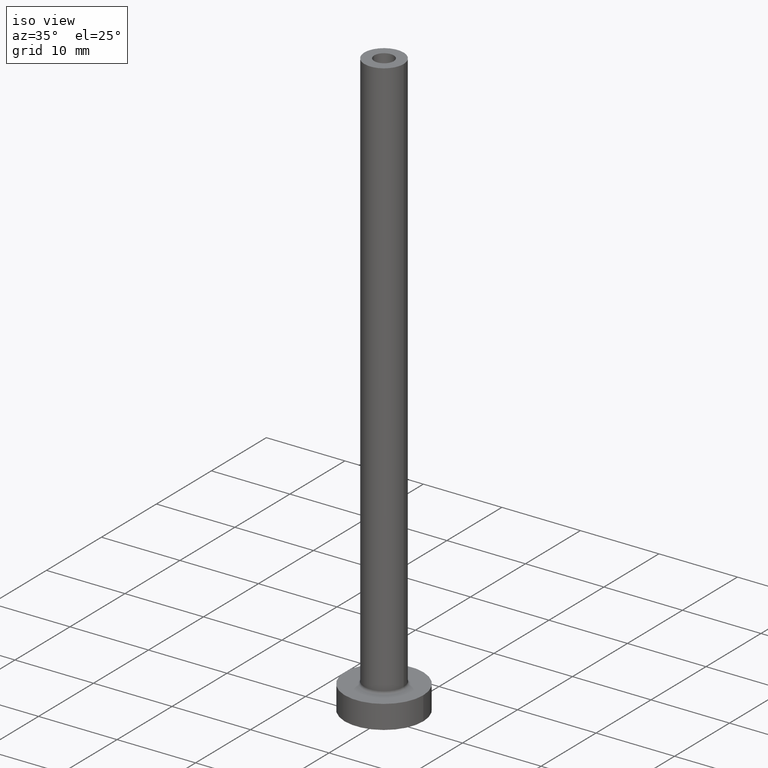
[diagram: clean part render]
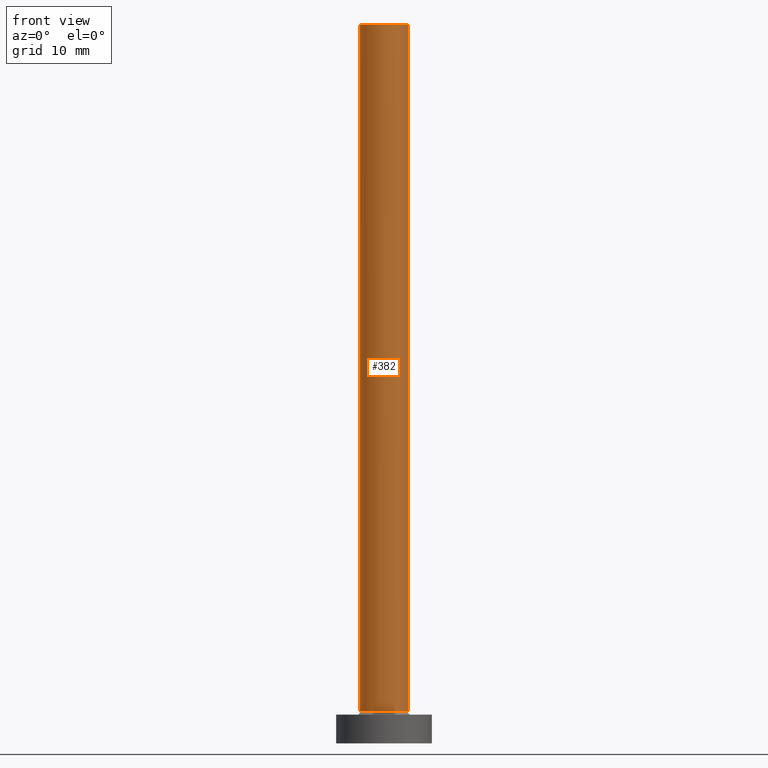
[diagram: tour spotlight — one face highlighted and labeled with its STEP entity id]
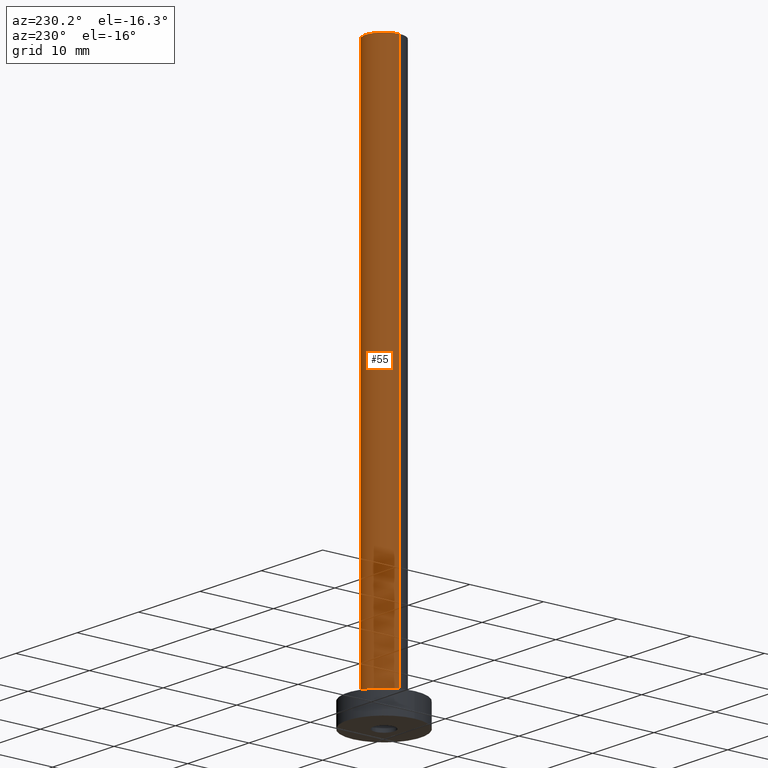
[diagram: tour spotlight — one face highlighted and labeled with its STEP entity id]
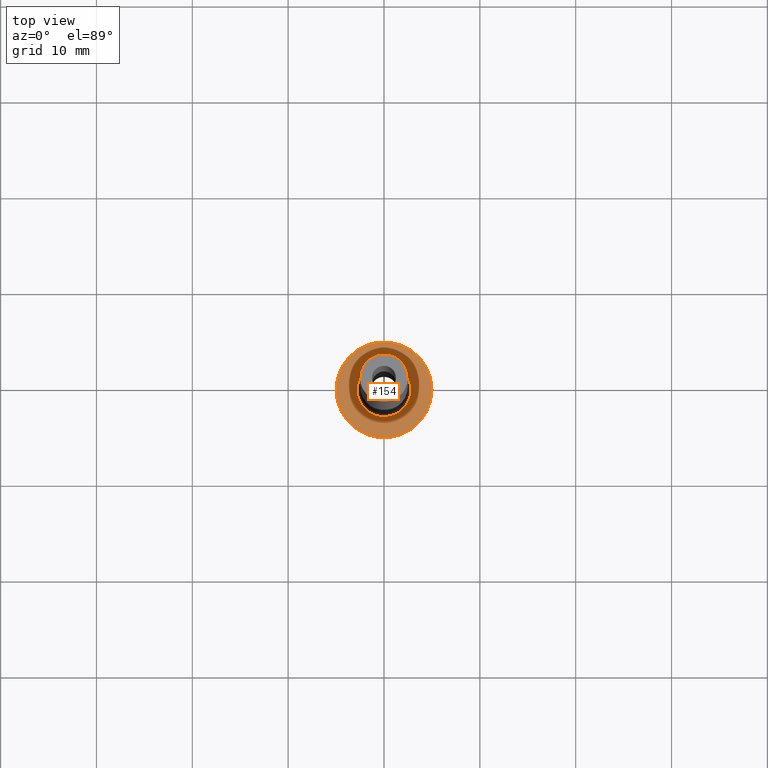
[diagram: tour spotlight — one face highlighted and labeled with its STEP entity id]
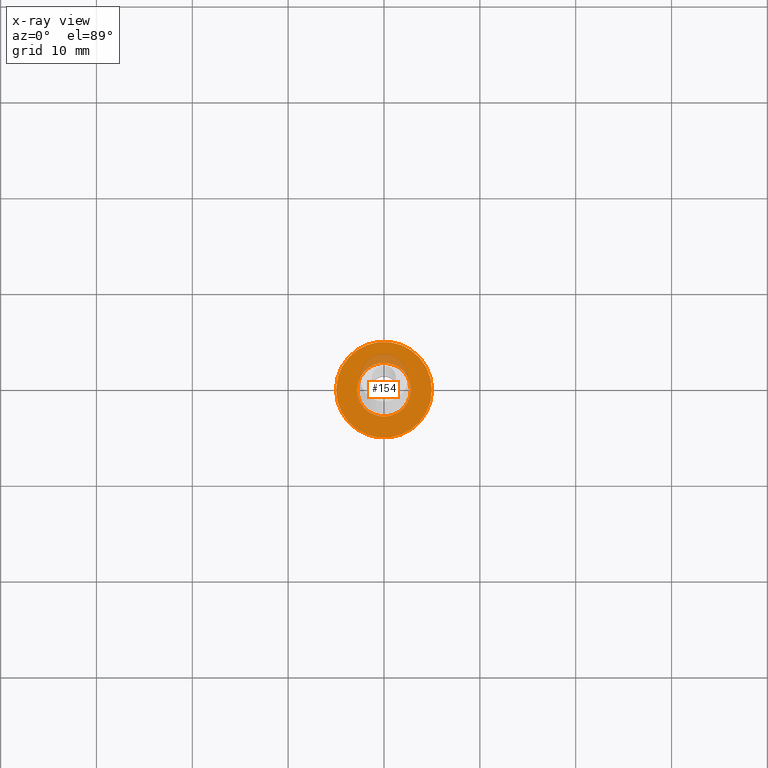
[diagram: x-ray of the same camera — body ghosted, this tour face saturated]
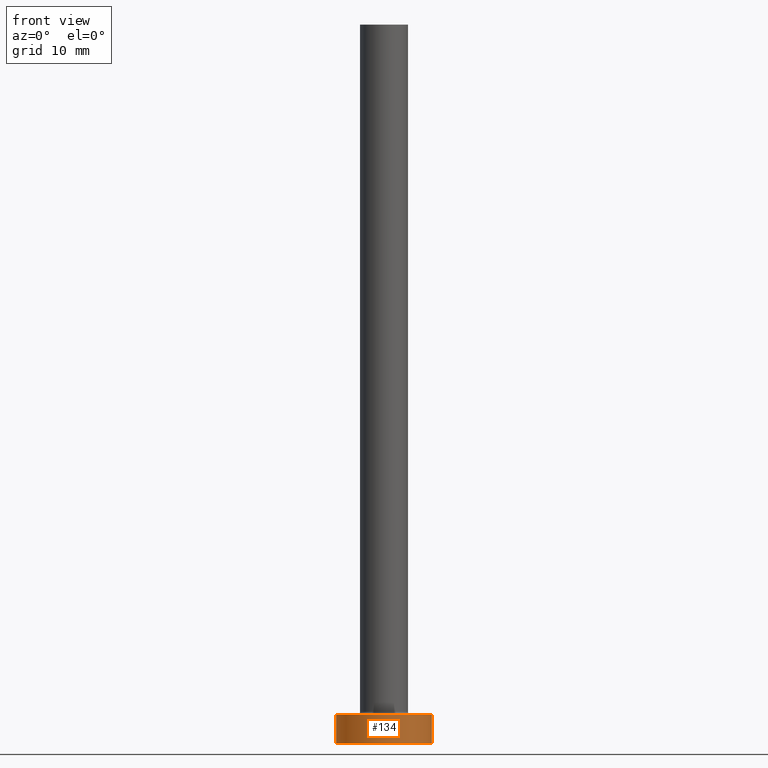
[diagram: tour spotlight — one face highlighted and labeled with its STEP entity id]
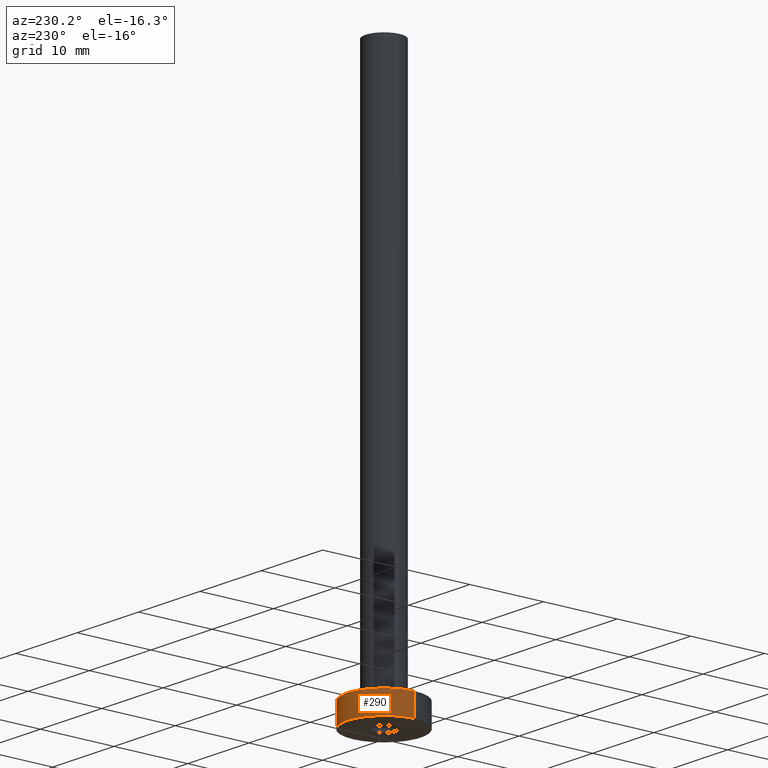
[diagram: tour spotlight — one face highlighted and labeled with its STEP entity id]
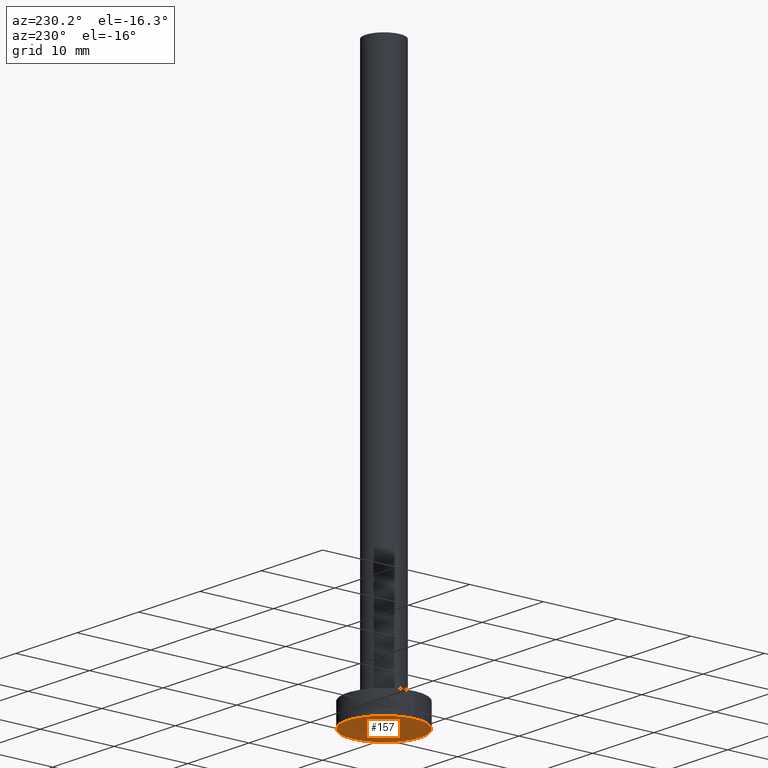
[diagram: tour spotlight — one face highlighted and labeled with its STEP entity id]
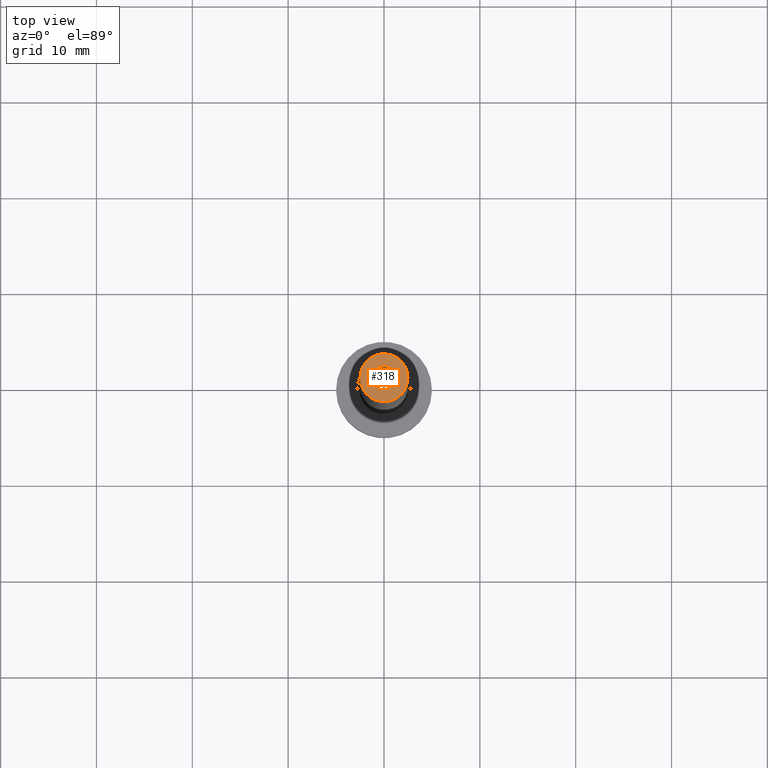
[diagram: tour spotlight — one face highlighted and labeled with its STEP entity id]
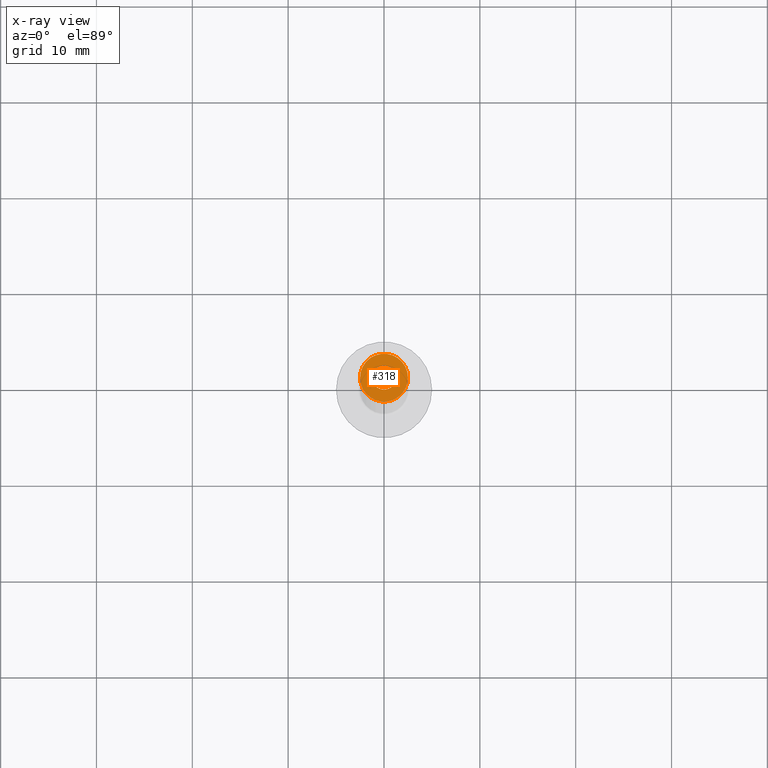
[diagram: x-ray of the same camera — body ghosted, this tour face saturated]
A machine part: a face-by-face anatomy tour. The part has 14 B-rep faces; the first image is the clean iso view, then the 7 largest visible faces are spotlighted one at a time (largest first), each with its STEP entity span.

Face 1 — front view, entity #382. In plain terms, the highlighted cylindrical surface (edge-blend (fillet) strip) has radius 2.5 mm, axis along (-0, -0, -1).
Definition (entity closure, byte-faithful):
#26 = CARTESIAN_POINT ( 'NONE',  ( 0.000000000000000000, 0.000000000000000000, 75.00000000000001421 ) ) ;
#70 = CARTESIAN_POINT ( 'NONE',  ( 0.000000000000000000, 0.000000000000000000, 3.299999999999997158 ) ) ;
#74 = CYLINDRICAL_SURFACE ( 'NONE', #282, 2.500000000000000000 ) ;
#85 = DIRECTION ( 'NONE',  ( -0.000000000000000000, -0.000000000000000000, -1.000000000000000000 ) ) ;
#89 = EDGE_LOOP ( 'NONE', ( #226, #340, #357, #111 ) ) ;
#91 = CIRCLE ( 'NONE', #317, 2.500000000000000000 ) ;
#109 = VERTEX_POINT ( 'NONE', #214 ) ;
#111 = ORIENTED_EDGE ( 'NONE', *, *, #126, .T. ) ;
#113 = EDGE_CURVE ( 'NONE', #440, #341, #91, .T. ) ;
#126 = EDGE_CURVE ( 'NONE', #109, #345, #129, .T. ) ;
#129 = CIRCLE ( 'NONE', #187, 2.500000000000000000 ) ;
#139 = LINE ( 'NONE', #243, #165 ) ;
#144 = DIRECTION ( 'NONE',  ( -1.000000000000000000, 0.000000000000000000, 0.000000000000000000 ) ) ;
#146 = DIRECTION ( 'NONE',  ( 0.000000000000000000, 0.000000000000000000, 1.000000000000000000 ) ) ;
#165 = VECTOR ( 'NONE', #275, 1000.000000000000000 ) ;
#176 = VECTOR ( 'NONE', #85, 1000.000000000000000 ) ;
#185 = CARTESIAN_POINT ( 'NONE',  ( 2.500000000000000000, 3.061616997868383141E-16, 75.00000000000001421 ) ) ;
#187 = AXIS2_PLACEMENT_3D ( 'NONE', #70, #453, #439 ) ;
#214 = CARTESIAN_POINT ( 'NONE',  ( -2.500000000000000000, 0.000000000000000000, 3.299999999999997158 ) ) ;
#225 = CARTESIAN_POINT ( 'NONE',  ( 0.000000000000000000, 0.000000000000000000, 75.00000000000001421 ) ) ;
#226 = ORIENTED_EDGE ( 'NONE', *, *, #437, .F. ) ;
#243 = CARTESIAN_POINT ( 'NONE',  ( 2.500000000000000000, 3.061616997868383141E-16, 75.00000000000001421 ) ) ;
#267 = CARTESIAN_POINT ( 'NONE',  ( -2.500000000000000000, 0.000000000000000000, 75.00000000000001421 ) ) ;
#275 = DIRECTION ( 'NONE',  ( -0.000000000000000000, -0.000000000000000000, -1.000000000000000000 ) ) ;
#282 = AXIS2_PLACEMENT_3D ( 'NONE', #225, #379, #144 ) ;
#293 = CARTESIAN_POINT ( 'NONE',  ( 2.500000000000000000, 3.061616997868383141E-16, 3.299999999999997158 ) ) ;
#308 = EDGE_CURVE ( 'NONE', #440, #109, #405, .T. ) ;
#317 = AXIS2_PLACEMENT_3D ( 'NONE', #26, #146, #343 ) ;
#340 = ORIENTED_EDGE ( 'NONE', *, *, #113, .F. ) ;
#341 = VERTEX_POINT ( 'NONE', #185 ) ;
#343 = DIRECTION ( 'NONE',  ( 1.000000000000000000, 0.000000000000000000, 0.000000000000000000 ) ) ;
#345 = VERTEX_POINT ( 'NONE', #293 ) ;
#357 = ORIENTED_EDGE ( 'NONE', *, *, #308, .T. ) ;
#379 = DIRECTION ( 'NONE',  ( -0.000000000000000000, -0.000000000000000000, -1.000000000000000000 ) ) ;
#382 = ADVANCED_FACE ( 'NONE', ( #391 ), #74, .T. ) ;
#391 = FACE_OUTER_BOUND ( 'NONE', #89, .T. ) ;
#405 = LINE ( 'NONE', #267, #176 ) ;
#411 = CARTESIAN_POINT ( 'NONE',  ( -2.500000000000000000, 0.000000000000000000, 75.00000000000001421 ) ) ;
#437 = EDGE_CURVE ( 'NONE', #341, #345, #139, .T. ) ;
#439 = DIRECTION ( 'NONE',  ( 1.000000000000000000, 0.000000000000000000, 0.000000000000000000 ) ) ;
#440 = VERTEX_POINT ( 'NONE', #411 ) ;
#453 = DIRECTION ( 'NONE',  ( 0.000000000000000000, 0.000000000000000000, 1.000000000000000000 ) ) ;

Face 2 — auxiliary view, entity #55. In plain terms, the highlighted cylindrical surface (edge-blend (fillet) strip) has radius 2.5 mm, axis along (-0, -0, -1).
Definition (entity closure, byte-faithful):
#7 = AXIS2_PLACEMENT_3D ( 'NONE', #273, #248, #170 ) ;
#8 = CIRCLE ( 'NONE', #69, 2.500000000000000000 ) ;
#11 = DIRECTION ( 'NONE',  ( 1.000000000000000000, 0.000000000000000000, 0.000000000000000000 ) ) ;
#50 = DIRECTION ( 'NONE',  ( -1.000000000000000000, 0.000000000000000000, 0.000000000000000000 ) ) ;
#55 = ADVANCED_FACE ( 'NONE', ( #246 ), #240, .T. ) ;
#69 = AXIS2_PLACEMENT_3D ( 'NONE', #90, #327, #11 ) ;
#79 = CIRCLE ( 'NONE', #7, 2.500000000000000000 ) ;
#85 = DIRECTION ( 'NONE',  ( -0.000000000000000000, -0.000000000000000000, -1.000000000000000000 ) ) ;
#87 = EDGE_LOOP ( 'NONE', ( #286, #388, #383, #249 ) ) ;
#90 = CARTESIAN_POINT ( 'NONE',  ( 0.000000000000000000, 0.000000000000000000, 3.299999999999997158 ) ) ;
#109 = VERTEX_POINT ( 'NONE', #214 ) ;
#139 = LINE ( 'NONE', #243, #165 ) ;
#165 = VECTOR ( 'NONE', #275, 1000.000000000000000 ) ;
#170 = DIRECTION ( 'NONE',  ( 1.000000000000000000, 0.000000000000000000, 0.000000000000000000 ) ) ;
#176 = VECTOR ( 'NONE', #85, 1000.000000000000000 ) ;
#185 = CARTESIAN_POINT ( 'NONE',  ( 2.500000000000000000, 3.061616997868383141E-16, 75.00000000000001421 ) ) ;
#194 = EDGE_CURVE ( 'NONE', #345, #109, #8, .T. ) ;
#214 = CARTESIAN_POINT ( 'NONE',  ( -2.500000000000000000, 0.000000000000000000, 3.299999999999997158 ) ) ;
#240 = CYLINDRICAL_SURFACE ( 'NONE', #242, 2.500000000000000000 ) ;
#242 = AXIS2_PLACEMENT_3D ( 'NONE', #373, #364, #50 ) ;
#243 = CARTESIAN_POINT ( 'NONE',  ( 2.500000000000000000, 3.061616997868383141E-16, 75.00000000000001421 ) ) ;
#246 = FACE_OUTER_BOUND ( 'NONE', #87, .T. ) ;
#248 = DIRECTION ( 'NONE',  ( 0.000000000000000000, 0.000000000000000000, 1.000000000000000000 ) ) ;
#249 = ORIENTED_EDGE ( 'NONE', *, *, #308, .F. ) ;
#267 = CARTESIAN_POINT ( 'NONE',  ( -2.500000000000000000, 0.000000000000000000, 75.00000000000001421 ) ) ;
#273 = CARTESIAN_POINT ( 'NONE',  ( 0.000000000000000000, 0.000000000000000000, 75.00000000000001421 ) ) ;
#275 = DIRECTION ( 'NONE',  ( -0.000000000000000000, -0.000000000000000000, -1.000000000000000000 ) ) ;
#286 = ORIENTED_EDGE ( 'NONE', *, *, #454, .F. ) ;
#293 = CARTESIAN_POINT ( 'NONE',  ( 2.500000000000000000, 3.061616997868383141E-16, 3.299999999999997158 ) ) ;
#308 = EDGE_CURVE ( 'NONE', #440, #109, #405, .T. ) ;
#327 = DIRECTION ( 'NONE',  ( 0.000000000000000000, 0.000000000000000000, 1.000000000000000000 ) ) ;
#341 = VERTEX_POINT ( 'NONE', #185 ) ;
#345 = VERTEX_POINT ( 'NONE', #293 ) ;
#364 = DIRECTION ( 'NONE',  ( -0.000000000000000000, -0.000000000000000000, -1.000000000000000000 ) ) ;
#373 = CARTESIAN_POINT ( 'NONE',  ( 0.000000000000000000, 0.000000000000000000, 75.00000000000001421 ) ) ;
#383 = ORIENTED_EDGE ( 'NONE', *, *, #194, .T. ) ;
#388 = ORIENTED_EDGE ( 'NONE', *, *, #437, .T. ) ;
#405 = LINE ( 'NONE', #267, #176 ) ;
#411 = CARTESIAN_POINT ( 'NONE',  ( -2.500000000000000000, 0.000000000000000000, 75.00000000000001421 ) ) ;
#437 = EDGE_CURVE ( 'NONE', #341, #345, #139, .T. ) ;
#440 = VERTEX_POINT ( 'NONE', #411 ) ;
#454 = EDGE_CURVE ( 'NONE', #341, #440, #79, .T. ) ;

Face 3 — top view, entity #154. An x-ray twin of the same camera follows (body ghosted, this face saturated) — the face is partly hidden behind the body. In plain terms, the highlighted planar face has unit normal (0, 0, 1).
Definition (entity closure, byte-faithful):
#3 = ORIENTED_EDGE ( 'NONE', *, *, #374, .T. ) ;
#9 = FACE_BOUND ( 'NONE', #258, .T. ) ;
#19 = CARTESIAN_POINT ( 'NONE',  ( 0.000000000000000000, 0.000000000000000000, 3.000000000000000000 ) ) ;
#22 = AXIS2_PLACEMENT_3D ( 'NONE', #292, #404, #409 ) ;
#48 = DIRECTION ( 'NONE',  ( 1.000000000000000000, 0.000000000000000000, 0.000000000000000000 ) ) ;
#64 = DIRECTION ( 'NONE',  ( 1.000000000000000000, 0.000000000000000000, 0.000000000000000000 ) ) ;
#83 = CARTESIAN_POINT ( 'NONE',  ( -2.799999999999999822, 3.429011037612589276E-16, 2.999999999999998668 ) ) ;
#96 = CIRCLE ( 'NONE', #160, 2.799999999999999822 ) ;
#116 = AXIS2_PLACEMENT_3D ( 'NONE', #19, #169, #416 ) ;
#124 = EDGE_LOOP ( 'NONE', ( #3, #312 ) ) ;
#143 = CIRCLE ( 'NONE', #116, 2.799999999999999822 ) ;
#154 = ADVANCED_FACE ( 'NONE', ( #9, #361 ), #244, .T. ) ;
#159 = CIRCLE ( 'NONE', #436, 5.000000000000000000 ) ;
#160 = AXIS2_PLACEMENT_3D ( 'NONE', #450, #412, #210 ) ;
#169 = DIRECTION ( 'NONE',  ( -0.000000000000000000, -0.000000000000000000, -1.000000000000000000 ) ) ;
#173 = DIRECTION ( 'NONE',  ( 0.000000000000000000, 0.000000000000000000, 1.000000000000000000 ) ) ;
#174 = EDGE_CURVE ( 'NONE', #175, #316, #96, .T. ) ;
#175 = VERTEX_POINT ( 'NONE', #270 ) ;
#181 = EDGE_CURVE ( 'NONE', #378, #457, #259, .T. ) ;
#193 = DIRECTION ( 'NONE',  ( 0.000000000000000000, 0.000000000000000000, 1.000000000000000000 ) ) ;
#210 = DIRECTION ( 'NONE',  ( 1.000000000000000000, 0.000000000000000000, 0.000000000000000000 ) ) ;
#220 = ORIENTED_EDGE ( 'NONE', *, *, #245, .T. ) ;
#222 = CARTESIAN_POINT ( 'NONE',  ( 5.000000000000000000, 6.123233995736766282E-16, 3.000000000000000000 ) ) ;
#223 = ORIENTED_EDGE ( 'NONE', *, *, #174, .T. ) ;
#244 = PLANE ( 'NONE',  #22 ) ;
#245 = EDGE_CURVE ( 'NONE', #316, #175, #143, .T. ) ;
#258 = EDGE_LOOP ( 'NONE', ( #223, #220 ) ) ;
#259 = CIRCLE ( 'NONE', #278, 5.000000000000000000 ) ;
#270 = CARTESIAN_POINT ( 'NONE',  ( 2.799999999999999822, 0.000000000000000000, 2.999999999999998668 ) ) ;
#272 = CARTESIAN_POINT ( 'NONE',  ( 0.000000000000000000, 0.000000000000000000, 3.000000000000000000 ) ) ;
#278 = AXIS2_PLACEMENT_3D ( 'NONE', #272, #193, #48 ) ;
#292 = CARTESIAN_POINT ( 'NONE',  ( 0.000000000000000000, 0.000000000000000000, 3.000000000000000000 ) ) ;
#299 = CARTESIAN_POINT ( 'NONE',  ( -5.000000000000000000, 0.000000000000000000, 3.000000000000000000 ) ) ;
#312 = ORIENTED_EDGE ( 'NONE', *, *, #181, .T. ) ;
#316 = VERTEX_POINT ( 'NONE', #83 ) ;
#361 = FACE_OUTER_BOUND ( 'NONE', #124, .T. ) ;
#374 = EDGE_CURVE ( 'NONE', #457, #378, #159, .T. ) ;
#378 = VERTEX_POINT ( 'NONE', #222 ) ;
#387 = CARTESIAN_POINT ( 'NONE',  ( 0.000000000000000000, 0.000000000000000000, 3.000000000000000000 ) ) ;
#404 = DIRECTION ( 'NONE',  ( 0.000000000000000000, 0.000000000000000000, 1.000000000000000000 ) ) ;
#409 = DIRECTION ( 'NONE',  ( 1.000000000000000000, 0.000000000000000000, -0.000000000000000000 ) ) ;
#412 = DIRECTION ( 'NONE',  ( -0.000000000000000000, -0.000000000000000000, -1.000000000000000000 ) ) ;
#416 = DIRECTION ( 'NONE',  ( 1.000000000000000000, 0.000000000000000000, 0.000000000000000000 ) ) ;
#436 = AXIS2_PLACEMENT_3D ( 'NONE', #387, #173, #64 ) ;
#450 = CARTESIAN_POINT ( 'NONE',  ( 0.000000000000000000, 0.000000000000000000, 3.000000000000000000 ) ) ;
#457 = VERTEX_POINT ( 'NONE', #299 ) ;

Face 4 — front view, entity #134. In plain terms, the highlighted cylindrical surface (partial cylindrical patch) has radius 5 mm, axis along (-0, -0, -1).
Definition (entity closure, byte-faithful):
#10 = DIRECTION ( 'NONE',  ( 0.000000000000000000, 0.000000000000000000, 1.000000000000000000 ) ) ;
#17 = EDGE_CURVE ( 'NONE', #378, #149, #241, .T. ) ;
#18 = CARTESIAN_POINT ( 'NONE',  ( -5.000000000000000000, 0.000000000000000000, 3.000000000000000000 ) ) ;
#20 = DIRECTION ( 'NONE',  ( -0.000000000000000000, -0.000000000000000000, -1.000000000000000000 ) ) ;
#36 = DIRECTION ( 'NONE',  ( -1.000000000000000000, 0.000000000000000000, 0.000000000000000000 ) ) ;
#40 = EDGE_CURVE ( 'NONE', #310, #149, #376, .T. ) ;
#64 = DIRECTION ( 'NONE',  ( 1.000000000000000000, 0.000000000000000000, 0.000000000000000000 ) ) ;
#105 = ORIENTED_EDGE ( 'NONE', *, *, #40, .T. ) ;
#134 = ADVANCED_FACE ( 'NONE', ( #288 ), #431, .T. ) ;
#137 = ORIENTED_EDGE ( 'NONE', *, *, #374, .F. ) ;
#149 = VERTEX_POINT ( 'NONE', #161 ) ;
#159 = CIRCLE ( 'NONE', #436, 5.000000000000000000 ) ;
#161 = CARTESIAN_POINT ( 'NONE',  ( 5.000000000000000000, 6.123233995736766282E-16, 0.000000000000000000 ) ) ;
#167 = LINE ( 'NONE', #18, #418 ) ;
#173 = DIRECTION ( 'NONE',  ( 0.000000000000000000, 0.000000000000000000, 1.000000000000000000 ) ) ;
#192 = CARTESIAN_POINT ( 'NONE',  ( 5.000000000000000000, 6.123233995736766282E-16, 3.000000000000000000 ) ) ;
#222 = CARTESIAN_POINT ( 'NONE',  ( 5.000000000000000000, 6.123233995736766282E-16, 3.000000000000000000 ) ) ;
#228 = DIRECTION ( 'NONE',  ( -0.000000000000000000, -0.000000000000000000, -1.000000000000000000 ) ) ;
#229 = ORIENTED_EDGE ( 'NONE', *, *, #446, .T. ) ;
#235 = CARTESIAN_POINT ( 'NONE',  ( -5.000000000000000000, 0.000000000000000000, 0.000000000000000000 ) ) ;
#241 = LINE ( 'NONE', #192, #268 ) ;
#252 = ORIENTED_EDGE ( 'NONE', *, *, #17, .F. ) ;
#255 = AXIS2_PLACEMENT_3D ( 'NONE', #262, #228, #36 ) ;
#262 = CARTESIAN_POINT ( 'NONE',  ( 0.000000000000000000, 0.000000000000000000, 3.000000000000000000 ) ) ;
#268 = VECTOR ( 'NONE', #368, 1000.000000000000000 ) ;
#288 = FACE_OUTER_BOUND ( 'NONE', #348, .T. ) ;
#299 = CARTESIAN_POINT ( 'NONE',  ( -5.000000000000000000, 0.000000000000000000, 3.000000000000000000 ) ) ;
#310 = VERTEX_POINT ( 'NONE', #235 ) ;
#322 = CARTESIAN_POINT ( 'NONE',  ( 0.000000000000000000, 0.000000000000000000, 0.000000000000000000 ) ) ;
#331 = DIRECTION ( 'NONE',  ( 1.000000000000000000, 0.000000000000000000, 0.000000000000000000 ) ) ;
#348 = EDGE_LOOP ( 'NONE', ( #252, #137, #229, #105 ) ) ;
#368 = DIRECTION ( 'NONE',  ( -0.000000000000000000, -0.000000000000000000, -1.000000000000000000 ) ) ;
#374 = EDGE_CURVE ( 'NONE', #457, #378, #159, .T. ) ;
#376 = CIRCLE ( 'NONE', #425, 5.000000000000000000 ) ;
#378 = VERTEX_POINT ( 'NONE', #222 ) ;
#387 = CARTESIAN_POINT ( 'NONE',  ( 0.000000000000000000, 0.000000000000000000, 3.000000000000000000 ) ) ;
#418 = VECTOR ( 'NONE', #20, 1000.000000000000000 ) ;
#425 = AXIS2_PLACEMENT_3D ( 'NONE', #322, #10, #331 ) ;
#431 = CYLINDRICAL_SURFACE ( 'NONE', #255, 5.000000000000000000 ) ;
#436 = AXIS2_PLACEMENT_3D ( 'NONE', #387, #173, #64 ) ;
#446 = EDGE_CURVE ( 'NONE', #457, #310, #167, .T. ) ;
#457 = VERTEX_POINT ( 'NONE', #299 ) ;

Face 5 — auxiliary view, entity #290. In plain terms, the highlighted cylindrical surface (partial cylindrical patch) has radius 5 mm, axis along (-0, -0, -1).
Definition (entity closure, byte-faithful):
#17 = EDGE_CURVE ( 'NONE', #378, #149, #241, .T. ) ;
#18 = CARTESIAN_POINT ( 'NONE',  ( -5.000000000000000000, 0.000000000000000000, 3.000000000000000000 ) ) ;
#20 = DIRECTION ( 'NONE',  ( -0.000000000000000000, -0.000000000000000000, -1.000000000000000000 ) ) ;
#48 = DIRECTION ( 'NONE',  ( 1.000000000000000000, 0.000000000000000000, 0.000000000000000000 ) ) ;
#62 = CARTESIAN_POINT ( 'NONE',  ( 0.000000000000000000, 0.000000000000000000, 0.000000000000000000 ) ) ;
#76 = DIRECTION ( 'NONE',  ( -1.000000000000000000, 0.000000000000000000, 0.000000000000000000 ) ) ;
#100 = AXIS2_PLACEMENT_3D ( 'NONE', #354, #358, #76 ) ;
#117 = FACE_OUTER_BOUND ( 'NONE', #346, .T. ) ;
#149 = VERTEX_POINT ( 'NONE', #161 ) ;
#161 = CARTESIAN_POINT ( 'NONE',  ( 5.000000000000000000, 6.123233995736766282E-16, 0.000000000000000000 ) ) ;
#167 = LINE ( 'NONE', #18, #418 ) ;
#181 = EDGE_CURVE ( 'NONE', #378, #457, #259, .T. ) ;
#192 = CARTESIAN_POINT ( 'NONE',  ( 5.000000000000000000, 6.123233995736766282E-16, 3.000000000000000000 ) ) ;
#193 = DIRECTION ( 'NONE',  ( 0.000000000000000000, 0.000000000000000000, 1.000000000000000000 ) ) ;
#202 = DIRECTION ( 'NONE',  ( 1.000000000000000000, 0.000000000000000000, 0.000000000000000000 ) ) ;
#211 = DIRECTION ( 'NONE',  ( 0.000000000000000000, 0.000000000000000000, 1.000000000000000000 ) ) ;
#212 = ORIENTED_EDGE ( 'NONE', *, *, #298, .T. ) ;
#222 = CARTESIAN_POINT ( 'NONE',  ( 5.000000000000000000, 6.123233995736766282E-16, 3.000000000000000000 ) ) ;
#231 = AXIS2_PLACEMENT_3D ( 'NONE', #62, #211, #202 ) ;
#235 = CARTESIAN_POINT ( 'NONE',  ( -5.000000000000000000, 0.000000000000000000, 0.000000000000000000 ) ) ;
#241 = LINE ( 'NONE', #192, #268 ) ;
#259 = CIRCLE ( 'NONE', #278, 5.000000000000000000 ) ;
#263 = ORIENTED_EDGE ( 'NONE', *, *, #181, .F. ) ;
#268 = VECTOR ( 'NONE', #368, 1000.000000000000000 ) ;
#272 = CARTESIAN_POINT ( 'NONE',  ( 0.000000000000000000, 0.000000000000000000, 3.000000000000000000 ) ) ;
#278 = AXIS2_PLACEMENT_3D ( 'NONE', #272, #193, #48 ) ;
#289 = ORIENTED_EDGE ( 'NONE', *, *, #446, .F. ) ;
#290 = ADVANCED_FACE ( 'NONE', ( #117 ), #393, .T. ) ;
#298 = EDGE_CURVE ( 'NONE', #149, #310, #350, .T. ) ;
#299 = CARTESIAN_POINT ( 'NONE',  ( -5.000000000000000000, 0.000000000000000000, 3.000000000000000000 ) ) ;
#310 = VERTEX_POINT ( 'NONE', #235 ) ;
#346 = EDGE_LOOP ( 'NONE', ( #263, #426, #212, #289 ) ) ;
#350 = CIRCLE ( 'NONE', #231, 5.000000000000000000 ) ;
#354 = CARTESIAN_POINT ( 'NONE',  ( 0.000000000000000000, 0.000000000000000000, 3.000000000000000000 ) ) ;
#358 = DIRECTION ( 'NONE',  ( -0.000000000000000000, -0.000000000000000000, -1.000000000000000000 ) ) ;
#368 = DIRECTION ( 'NONE',  ( -0.000000000000000000, -0.000000000000000000, -1.000000000000000000 ) ) ;
#378 = VERTEX_POINT ( 'NONE', #222 ) ;
#393 = CYLINDRICAL_SURFACE ( 'NONE', #100, 5.000000000000000000 ) ;
#418 = VECTOR ( 'NONE', #20, 1000.000000000000000 ) ;
#426 = ORIENTED_EDGE ( 'NONE', *, *, #17, .T. ) ;
#446 = EDGE_CURVE ( 'NONE', #457, #310, #167, .T. ) ;
#457 = VERTEX_POINT ( 'NONE', #299 ) ;

Face 6 — auxiliary view, entity #157. In plain terms, the highlighted planar face has unit normal (0, 0, 1).
Definition (entity closure, byte-faithful):
#10 = DIRECTION ( 'NONE',  ( 0.000000000000000000, 0.000000000000000000, 1.000000000000000000 ) ) ;
#23 = DIRECTION ( 'NONE',  ( 1.000000000000000000, 0.000000000000000000, 0.000000000000000000 ) ) ;
#27 = DIRECTION ( 'NONE',  ( -0.000000000000000000, -0.000000000000000000, -1.000000000000000000 ) ) ;
#29 = AXIS2_PLACEMENT_3D ( 'NONE', #198, #54, #201 ) ;
#33 = ORIENTED_EDGE ( 'NONE', *, *, #257, .F. ) ;
#38 = AXIS2_PLACEMENT_3D ( 'NONE', #414, #449, #23 ) ;
#40 = EDGE_CURVE ( 'NONE', #310, #149, #376, .T. ) ;
#41 = ORIENTED_EDGE ( 'NONE', *, *, #298, .F. ) ;
#54 = DIRECTION ( 'NONE',  ( 0.000000000000000000, 0.000000000000000000, 1.000000000000000000 ) ) ;
#57 = PLANE ( 'NONE',  #29 ) ;
#58 = ORIENTED_EDGE ( 'NONE', *, *, #40, .F. ) ;
#62 = CARTESIAN_POINT ( 'NONE',  ( 0.000000000000000000, 0.000000000000000000, 0.000000000000000000 ) ) ;
#77 = DIRECTION ( 'NONE',  ( 1.000000000000000000, 0.000000000000000000, 0.000000000000000000 ) ) ;
#78 = VERTEX_POINT ( 'NONE', #424 ) ;
#82 = EDGE_LOOP ( 'NONE', ( #58, #41 ) ) ;
#99 = EDGE_LOOP ( 'NONE', ( #274, #33 ) ) ;
#123 = FACE_BOUND ( 'NONE', #99, .T. ) ;
#136 = CARTESIAN_POINT ( 'NONE',  ( -1.399999999999999911, 0.000000000000000000, 0.000000000000000000 ) ) ;
#149 = VERTEX_POINT ( 'NONE', #161 ) ;
#157 = ADVANCED_FACE ( 'NONE', ( #123, #370 ), #57, .F. ) ;
#161 = CARTESIAN_POINT ( 'NONE',  ( 5.000000000000000000, 6.123233995736766282E-16, 0.000000000000000000 ) ) ;
#198 = CARTESIAN_POINT ( 'NONE',  ( 0.000000000000000000, 0.000000000000000000, 0.000000000000000000 ) ) ;
#201 = DIRECTION ( 'NONE',  ( 1.000000000000000000, 0.000000000000000000, -0.000000000000000000 ) ) ;
#202 = DIRECTION ( 'NONE',  ( 1.000000000000000000, 0.000000000000000000, 0.000000000000000000 ) ) ;
#211 = DIRECTION ( 'NONE',  ( 0.000000000000000000, 0.000000000000000000, 1.000000000000000000 ) ) ;
#231 = AXIS2_PLACEMENT_3D ( 'NONE', #62, #211, #202 ) ;
#235 = CARTESIAN_POINT ( 'NONE',  ( -5.000000000000000000, 0.000000000000000000, 0.000000000000000000 ) ) ;
#251 = CIRCLE ( 'NONE', #38, 1.399999999999999911 ) ;
#257 = EDGE_CURVE ( 'NONE', #78, #430, #305, .T. ) ;
#274 = ORIENTED_EDGE ( 'NONE', *, *, #402, .F. ) ;
#298 = EDGE_CURVE ( 'NONE', #149, #310, #350, .T. ) ;
#305 = CIRCLE ( 'NONE', #435, 1.399999999999999911 ) ;
#310 = VERTEX_POINT ( 'NONE', #235 ) ;
#322 = CARTESIAN_POINT ( 'NONE',  ( 0.000000000000000000, 0.000000000000000000, 0.000000000000000000 ) ) ;
#331 = DIRECTION ( 'NONE',  ( 1.000000000000000000, 0.000000000000000000, 0.000000000000000000 ) ) ;
#350 = CIRCLE ( 'NONE', #231, 5.000000000000000000 ) ;
#370 = FACE_OUTER_BOUND ( 'NONE', #82, .T. ) ;
#376 = CIRCLE ( 'NONE', #425, 5.000000000000000000 ) ;
#402 = EDGE_CURVE ( 'NONE', #430, #78, #251, .T. ) ;
#414 = CARTESIAN_POINT ( 'NONE',  ( 0.000000000000000000, 0.000000000000000000, 0.000000000000000000 ) ) ;
#421 = CARTESIAN_POINT ( 'NONE',  ( 0.000000000000000000, 0.000000000000000000, 0.000000000000000000 ) ) ;
#424 = CARTESIAN_POINT ( 'NONE',  ( 1.399999999999999911, 1.714505518806294391E-16, 0.000000000000000000 ) ) ;
#425 = AXIS2_PLACEMENT_3D ( 'NONE', #322, #10, #331 ) ;
#430 = VERTEX_POINT ( 'NONE', #136 ) ;
#435 = AXIS2_PLACEMENT_3D ( 'NONE', #421, #27, #77 ) ;
#449 = DIRECTION ( 'NONE',  ( -0.000000000000000000, -0.000000000000000000, -1.000000000000000000 ) ) ;

Face 7 — top view, entity #318. An x-ray twin of the same camera follows (body ghosted, this face saturated) — the face is partly hidden behind the body. In plain terms, the highlighted planar face has unit normal (0, 0, 1).
Definition (entity closure, byte-faithful):
#1 = VERTEX_POINT ( 'NONE', #406 ) ;
#7 = AXIS2_PLACEMENT_3D ( 'NONE', #273, #248, #170 ) ;
#26 = CARTESIAN_POINT ( 'NONE',  ( 0.000000000000000000, 0.000000000000000000, 75.00000000000001421 ) ) ;
#46 = CARTESIAN_POINT ( 'NONE',  ( 0.000000000000000000, 0.000000000000000000, 75.00000000000001421 ) ) ;
#47 = CARTESIAN_POINT ( 'NONE',  ( 0.000000000000000000, 0.000000000000000000, 75.00000000000001421 ) ) ;
#75 = ORIENTED_EDGE ( 'NONE', *, *, #420, .F. ) ;
#79 = CIRCLE ( 'NONE', #7, 2.500000000000000000 ) ;
#91 = CIRCLE ( 'NONE', #317, 2.500000000000000000 ) ;
#101 = CIRCLE ( 'NONE', #351, 1.250000000000000000 ) ;
#106 = AXIS2_PLACEMENT_3D ( 'NONE', #47, #321, #191 ) ;
#113 = EDGE_CURVE ( 'NONE', #440, #341, #91, .T. ) ;
#133 = DIRECTION ( 'NONE',  ( 1.000000000000000000, 0.000000000000000000, 0.000000000000000000 ) ) ;
#146 = DIRECTION ( 'NONE',  ( 0.000000000000000000, 0.000000000000000000, 1.000000000000000000 ) ) ;
#147 = EDGE_CURVE ( 'NONE', #1, #277, #447, .T. ) ;
#148 = EDGE_LOOP ( 'NONE', ( #403, #75 ) ) ;
#170 = DIRECTION ( 'NONE',  ( 1.000000000000000000, 0.000000000000000000, 0.000000000000000000 ) ) ;
#185 = CARTESIAN_POINT ( 'NONE',  ( 2.500000000000000000, 3.061616997868383141E-16, 75.00000000000001421 ) ) ;
#190 = DIRECTION ( 'NONE',  ( 0.000000000000000000, 0.000000000000000000, 1.000000000000000000 ) ) ;
#191 = DIRECTION ( 'NONE',  ( 1.000000000000000000, 0.000000000000000000, 0.000000000000000000 ) ) ;
#195 = FACE_BOUND ( 'NONE', #148, .T. ) ;
#204 = CARTESIAN_POINT ( 'NONE',  ( 0.000000000000000000, 0.000000000000000000, 75.00000000000001421 ) ) ;
#237 = PLANE ( 'NONE',  #384 ) ;
#248 = DIRECTION ( 'NONE',  ( 0.000000000000000000, 0.000000000000000000, 1.000000000000000000 ) ) ;
#254 = ORIENTED_EDGE ( 'NONE', *, *, #454, .T. ) ;
#256 = EDGE_LOOP ( 'NONE', ( #428, #254 ) ) ;
#269 = CARTESIAN_POINT ( 'NONE',  ( 1.250000000000000000, 1.530808498934191571E-16, 75.00000000000001421 ) ) ;
#273 = CARTESIAN_POINT ( 'NONE',  ( 0.000000000000000000, 0.000000000000000000, 75.00000000000001421 ) ) ;
#277 = VERTEX_POINT ( 'NONE', #269 ) ;
#317 = AXIS2_PLACEMENT_3D ( 'NONE', #26, #146, #343 ) ;
#318 = ADVANCED_FACE ( 'NONE', ( #195, #360 ), #237, .T. ) ;
#321 = DIRECTION ( 'NONE',  ( 0.000000000000000000, 0.000000000000000000, 1.000000000000000000 ) ) ;
#336 = DIRECTION ( 'NONE',  ( 0.000000000000000000, 0.000000000000000000, 1.000000000000000000 ) ) ;
#341 = VERTEX_POINT ( 'NONE', #185 ) ;
#343 = DIRECTION ( 'NONE',  ( 1.000000000000000000, 0.000000000000000000, 0.000000000000000000 ) ) ;
#351 = AXIS2_PLACEMENT_3D ( 'NONE', #204, #336, #133 ) ;
#355 = DIRECTION ( 'NONE',  ( 1.000000000000000000, 0.000000000000000000, -0.000000000000000000 ) ) ;
#360 = FACE_OUTER_BOUND ( 'NONE', #256, .T. ) ;
#384 = AXIS2_PLACEMENT_3D ( 'NONE', #46, #190, #355 ) ;
#403 = ORIENTED_EDGE ( 'NONE', *, *, #147, .F. ) ;
#406 = CARTESIAN_POINT ( 'NONE',  ( -1.250000000000000000, 0.000000000000000000, 75.00000000000001421 ) ) ;
#411 = CARTESIAN_POINT ( 'NONE',  ( -2.500000000000000000, 0.000000000000000000, 75.00000000000001421 ) ) ;
#420 = EDGE_CURVE ( 'NONE', #277, #1, #101, .T. ) ;
#428 = ORIENTED_EDGE ( 'NONE', *, *, #113, .T. ) ;
#440 = VERTEX_POINT ( 'NONE', #411 ) ;
#447 = CIRCLE ( 'NONE', #106, 1.250000000000000000 ) ;
#454 = EDGE_CURVE ( 'NONE', #341, #440, #79, .T. ) ;